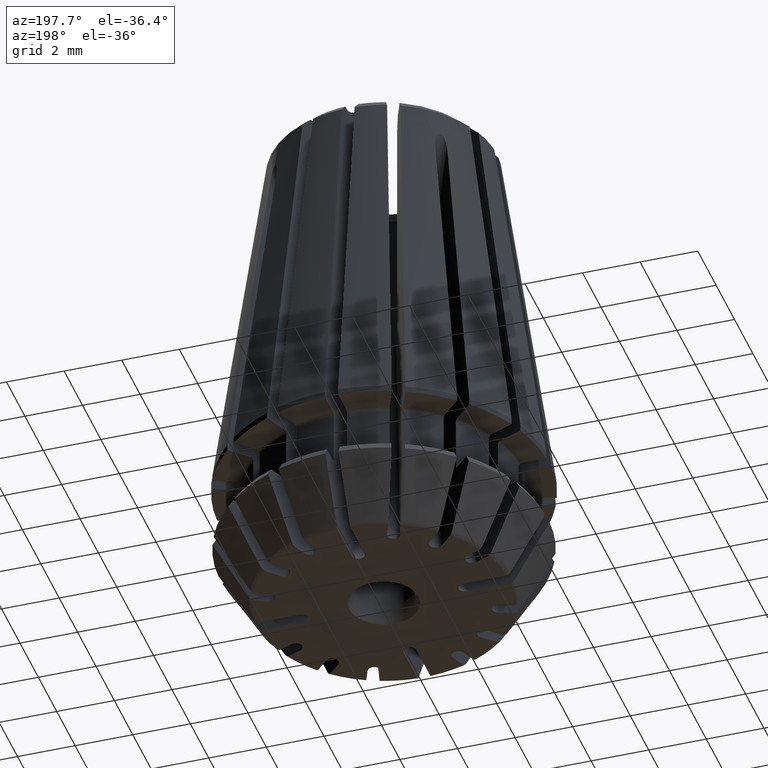
[diagram: clean part render]
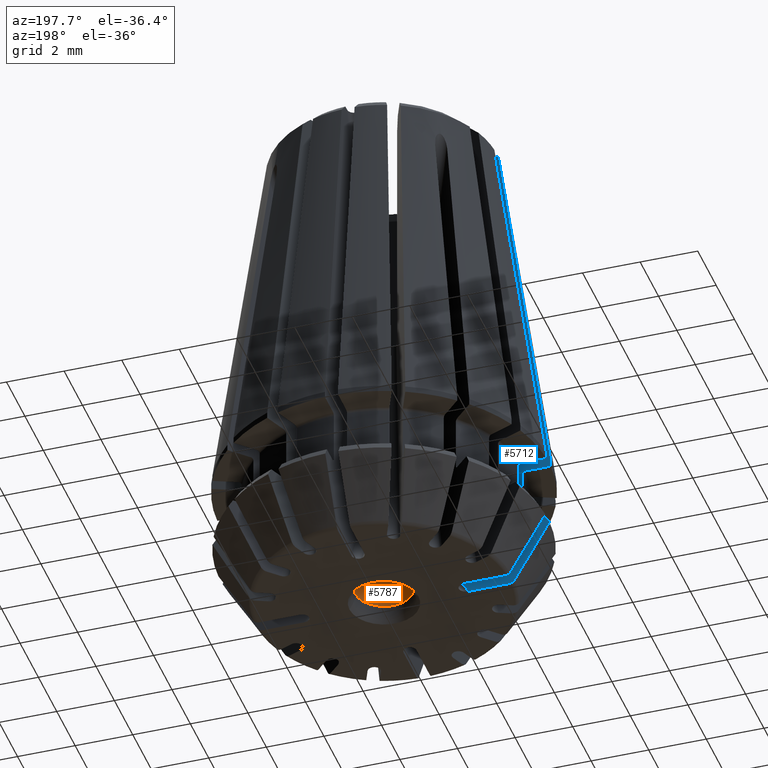
[diagram: same view with the hole feature highlighted: cylindrical wall and planar end face, labeled with their STEP entity ids]
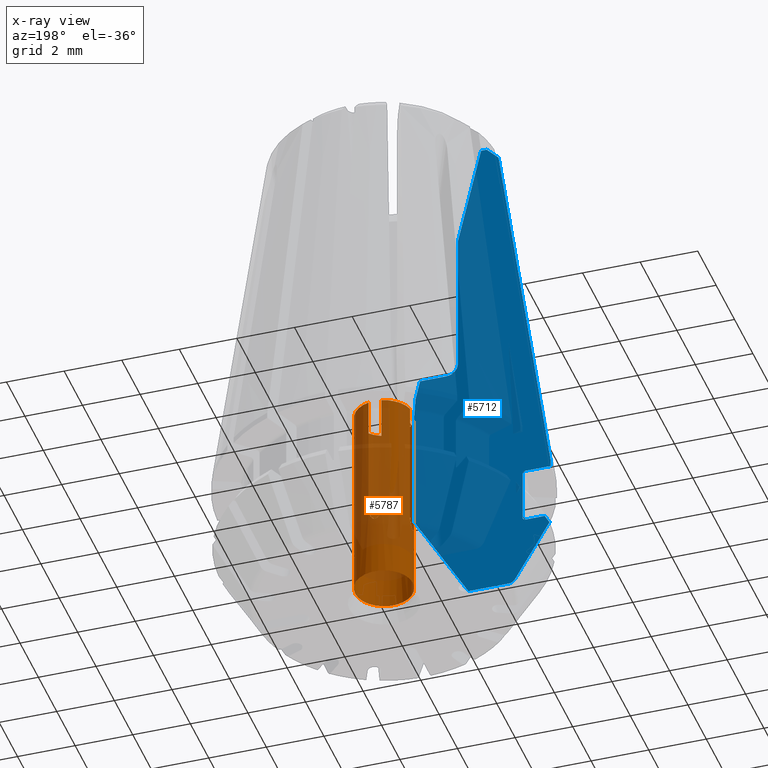
[diagram: x-ray of the same camera — body ghosted, the hole faces saturated]
A machine part, auxiliary view. The highlighted faces form one hole feature of diameter 2 mm: the cylindrical wall (entity #5787, orange) and its adjacent planar end face (entity #5712, blue) — they share a circular edge in the B-rep.
The next image is the same camera in x-ray (body ghosted, the hole faces saturated) — the bore reads through the body.
Wall:
#155=CYLINDRICAL_SURFACE('',#6453,1.);
#323=B_SPLINE_CURVE_WITH_KNOTS('',3,(#10191,#10192,#10193,#10194,#10195,
#10196,#10197,#10198,#10199),.UNSPECIFIED.,.F.,.F.,(4,1,1,1,1,1,4),(7.48040572663127E-18,
0.00028729196309179,0.000430937944637681,0.000574583926183573,0.000718229907729464,
0.000861875889275356,0.00114916785236714),.UNSPECIFIED.);
#361=B_SPLINE_CURVE_WITH_KNOTS('',3,(#10673,#10674,#10675,#10676,#10677,
#10678,#10679,#10680,#10681),.UNSPECIFIED.,.F.,.F.,(4,1,1,1,1,1,4),(7.48040572663127E-18,
0.000287291963091796,0.00043093794463769,0.000574583926183584,0.000718229907729479,
0.000861875889275373,0.00114916785236716),.UNSPECIFIED.);
#370=B_SPLINE_CURVE_WITH_KNOTS('',3,(#10783,#10784,#10785,#10786,#10787,
#10788,#10789,#10790,#10791),.UNSPECIFIED.,.F.,.F.,(4,1,1,1,1,1,4),(7.48040572663127E-18,
0.000287291963091796,0.00043093794463769,0.000574583926183584,0.000718229907729478,
0.000861875889275372,0.00114916785236716),.UNSPECIFIED.);
#371=B_SPLINE_CURVE_WITH_KNOTS('',3,(#10794,#10795,#10796,#10797,#10798,
#10799,#10800,#10801,#10802),.UNSPECIFIED.,.F.,.F.,(4,1,1,1,1,1,4),(3.03613875458156E-17,
0.000287291963091815,0.000430937944637707,0.000574583926183599,0.000718229907729491,
0.000861875889275384,0.00114916785236717),.UNSPECIFIED.);
#640=LINE('',#10153,#984);
#654=LINE('',#10219,#998);
#666=LINE('',#10254,#1010);
#720=LINE('',#10443,#1064);
#770=LINE('',#10708,#1114);
#774=LINE('',#10721,#1118);
#779=LINE('',#10751,#1123);
#784=LINE('',#10793,#1128);
#984=VECTOR('',#7640,1000.);
#998=VECTOR('',#7670,1000.);
#1010=VECTOR('',#7688,1000.);
#1064=VECTOR('',#7780,1000.);
#1114=VECTOR('',#8018,1000.);
#1118=VECTOR('',#8026,1000.);
#1123=VECTOR('',#8043,1000.);
#1128=VECTOR('',#8092,1000.);
#1398=CIRCLE('',#6259,1.);
#1421=CIRCLE('',#6298,1.);
#1457=CIRCLE('',#6447,1.);
#1458=CIRCLE('',#6449,1.);
#1459=CIRCLE('',#6451,1.);
#3174=ORIENTED_EDGE('',*,*,#3945,.F.);
#3175=ORIENTED_EDGE('',*,*,#4060,.T.);
#3176=ORIENTED_EDGE('',*,*,#4196,.T.);
#3177=ORIENTED_EDGE('',*,*,#3948,.F.);
#3178=ORIENTED_EDGE('',*,*,#3963,.T.);
#3179=ORIENTED_EDGE('',*,*,#4198,.T.);
#3180=ORIENTED_EDGE('',*,*,#3894,.T.);
#3181=ORIENTED_EDGE('',*,*,#4178,.F.);
#3182=ORIENTED_EDGE('',*,*,#4152,.T.);
#3183=ORIENTED_EDGE('',*,*,#3971,.T.);
#3184=ORIENTED_EDGE('',*,*,#4195,.T.);
#3185=ORIENTED_EDGE('',*,*,#4163,.F.);
#3186=ORIENTED_EDGE('',*,*,#4197,.T.);
#3187=ORIENTED_EDGE('',*,*,#3986,.T.);
#3188=ORIENTED_EDGE('',*,*,#4194,.T.);
#3189=ORIENTED_EDGE('',*,*,#4168,.F.);
#3190=ORIENTED_EDGE('',*,*,#4199,.T.);
#3894=EDGE_CURVE('',#4662,#4661,#1398,.T.);
#3945=EDGE_CURVE('',#4699,#4699,#1421,.T.);
#3948=EDGE_CURVE('',#4701,#4702,#640,.T.);
#3963=EDGE_CURVE('',#4701,#4708,#323,.T.);
#3971=EDGE_CURVE('',#4713,#4712,#654,.T.);
#3986=EDGE_CURVE('',#4721,#4720,#666,.T.);
#4060=EDGE_CURVE('',#4760,#4759,#720,.T.);
#4152=EDGE_CURVE('',#4798,#4713,#361,.T.);
#4163=EDGE_CURVE('',#4803,#4804,#770,.T.);
#4168=EDGE_CURVE('',#4806,#4807,#774,.T.);
#4178=EDGE_CURVE('',#4798,#4661,#779,.T.);
#4194=EDGE_CURVE('',#4720,#4807,#1457,.T.);
#4195=EDGE_CURVE('',#4712,#4804,#1458,.T.);
#4196=EDGE_CURVE('',#4759,#4702,#1459,.T.);
#4197=EDGE_CURVE('',#4803,#4721,#370,.T.);
#4198=EDGE_CURVE('',#4708,#4662,#784,.T.);
#4199=EDGE_CURVE('',#4806,#4760,#371,.T.);
#4661=VERTEX_POINT('',#9981);
#4662=VERTEX_POINT('',#9983);
#4699=VERTEX_POINT('',#10147);
#4701=VERTEX_POINT('',#10152);
#4702=VERTEX_POINT('',#10154);
#4708=VERTEX_POINT('',#10200);
#4712=VERTEX_POINT('',#10218);
#4713=VERTEX_POINT('',#10220);
#4720=VERTEX_POINT('',#10253);
#4721=VERTEX_POINT('',#10255);
#4759=VERTEX_POINT('',#10442);
#4760=VERTEX_POINT('',#10444);
#4798=VERTEX_POINT('',#10682);
#4803=VERTEX_POINT('',#10707);
#4804=VERTEX_POINT('',#10709);
#4806=VERTEX_POINT('',#10720);
#4807=VERTEX_POINT('',#10722);
#5124=EDGE_LOOP('',(#3174));
#5125=EDGE_LOOP('',(#3175,#3176,#3177,#3178,#3179,#3180,#3181,#3182,#3183,
#3184,#3185,#3186,#3187,#3188,#3189,#3190));
#5418=FACE_BOUND('',#5124,.T.);
#5419=FACE_BOUND('',#5125,.T.);
#5787=ADVANCED_FACE('',(#5418,#5419),#155,.F.);
#6259=AXIS2_PLACEMENT_3D('',#9982,#7540,#7541);
#6298=AXIS2_PLACEMENT_3D('',#10146,#7634,#7635);
#6447=AXIS2_PLACEMENT_3D('',#10777,#8078,#8079);
#6449=AXIS2_PLACEMENT_3D('',#10779,#8082,#8083);
#6451=AXIS2_PLACEMENT_3D('',#10781,#8086,#8087);
#6453=AXIS2_PLACEMENT_3D('',#10792,#8090,#8091);
#7540=DIRECTION('',(0.,0.,1.));
#7541=DIRECTION('',(1.,0.,0.));
#7634=DIRECTION('',(0.,0.,1.));
#7635=DIRECTION('',(1.,0.,0.));
#7640=DIRECTION('',(0.,0.,1.));
#7670=DIRECTION('',(0.,0.,1.));
#7688=DIRECTION('',(0.,0.,1.));
#7780=DIRECTION('',(0.,0.,1.));
#8018=DIRECTION('',(0.,0.,1.));
#8026=DIRECTION('',(0.,0.,1.));
#8043=DIRECTION('',(0.,0.,1.));
#8078=DIRECTION('',(0.,0.,1.));
#8079=DIRECTION('',(1.,0.,0.));
#8082=DIRECTION('',(0.,0.,1.));
#8083=DIRECTION('',(1.,0.,0.));
#8086=DIRECTION('',(0.,0.,1.));
#8087=DIRECTION('',(1.,0.,0.));
#8090=DIRECTION('',(0.,0.,-1.));
#8091=DIRECTION('',(1.,0.,0.));
#8092=DIRECTION('',(0.,0.,1.));
#9981=CARTESIAN_POINT('',(0.974358763495254,-0.225,3.1));
#9982=CARTESIAN_POINT('',(0.,0.,3.1));
#9983=CARTESIAN_POINT('',(0.225,-0.974358763495253,3.1));
#10146=CARTESIAN_POINT('',(0.,0.,-3.9));
#10147=CARTESIAN_POINT('',(1.,0.,-3.9));
#10152=CARTESIAN_POINT('',(-0.225,-0.974358763495252,-1.23763888317376));
#10153=CARTESIAN_POINT('',(-0.225,-0.974358763495253,60.));
#10154=CARTESIAN_POINT('',(-0.225,-0.974358763495254,3.1));
#10191=CARTESIAN_POINT('',(-0.225,-0.974358763495254,-1.23763888317377));
#10192=CARTESIAN_POINT('',(-0.225,-0.974358763495254,-1.33480576950573));
#10193=CARTESIAN_POINT('',(-0.201587726299522,-0.9798318673111,-1.47864644069128));
#10194=CARTESIAN_POINT('',(-0.131396926226279,-0.992724607326561,-1.65480442777411));
#10195=CARTESIAN_POINT('',(-0.00339382309168524,-1.00352923032475,-1.7694433398942));
#10196=CARTESIAN_POINT('',(0.129464355850656,-0.993138430190409,-1.65951419627548));
#10197=CARTESIAN_POINT('',(0.200693035193686,-0.979959953572658,-1.48184302279587));
#10198=CARTESIAN_POINT('',(0.225000000000002,-0.974358763495255,-1.3354375134434));
#10199=CARTESIAN_POINT('',(0.225000000000001,-0.974358763495256,-1.23763888317376));
#10200=CARTESIAN_POINT('',(0.225,-0.974358763495254,-1.23763888317376));
#10218=CARTESIAN_POINT('',(0.974358763495253,0.225,3.1));
#10219=CARTESIAN_POINT('',(0.974358763495253,0.225,60.));
#10220=CARTESIAN_POINT('',(0.974358763495254,0.225,-1.23763888317374));
#10253=CARTESIAN_POINT('',(-0.225,0.974358763495253,3.1));
#10254=CARTESIAN_POINT('',(-0.225,0.974358763495253,60.));
#10255=CARTESIAN_POINT('',(-0.225,0.974358763495254,-1.23763888317374));
#10442=CARTESIAN_POINT('',(-0.974358763495254,-0.225,3.1));
#10443=CARTESIAN_POINT('',(-0.974358763495253,-0.225,60.));
#10444=CARTESIAN_POINT('',(-0.97435876349525,-0.225,-1.23763888317373));
#10673=CARTESIAN_POINT('',(0.974358763495254,-0.225,-1.23763888317377));
#10674=CARTESIAN_POINT('',(0.974358763495254,-0.225,-1.33480576950573));
#10675=CARTESIAN_POINT('',(0.979831867311099,-0.20158772629952,-1.47864644069128));
#10676=CARTESIAN_POINT('',(0.992724607326562,-0.131396926226275,-1.65480442777412));
#10677=CARTESIAN_POINT('',(1.00352923032475,-0.0033938230916703,-1.7694433398942));
#10678=CARTESIAN_POINT('',(0.993138430190407,0.129464355850665,-1.65951419627546));
#10679=CARTESIAN_POINT('',(0.979959953572656,0.200693035193691,-1.48184302279585));
#10680=CARTESIAN_POINT('',(0.974358763495255,0.225000000000002,-1.3354375134434));
#10681=CARTESIAN_POINT('',(0.974358763495256,0.225000000000001,-1.23763888317376));
#10682=CARTESIAN_POINT('',(0.974358763495252,-0.225,-1.23763888317376));
#10707=CARTESIAN_POINT('',(0.225,0.974358763495252,-1.23763888317376));
#10708=CARTESIAN_POINT('',(0.225,0.974358763495253,60.));
#10709=CARTESIAN_POINT('',(0.225,0.974358763495254,3.1));
#10720=CARTESIAN_POINT('',(-0.974358763495254,0.225,-1.23763888317374));
#10721=CARTESIAN_POINT('',(-0.974358763495253,0.225,60.));
#10722=CARTESIAN_POINT('',(-0.974358763495253,0.225,3.1));
#10751=CARTESIAN_POINT('',(0.974358763495253,-0.225,60.));
#10777=CARTESIAN_POINT('',(0.,0.,3.1));
#10779=CARTESIAN_POINT('',(0.,0.,3.1));
#10781=CARTESIAN_POINT('',(0.,0.,3.1));
#10783=CARTESIAN_POINT('',(0.225,0.974358763495254,-1.23763888317377));
#10784=CARTESIAN_POINT('',(0.225,0.974358763495254,-1.33480576950573));
#10785=CARTESIAN_POINT('',(0.20158772629952,0.9798318673111,-1.47864644069128));
#10786=CARTESIAN_POINT('',(0.131396926226276,0.992724607326562,-1.65480442777412));
#10787=CARTESIAN_POINT('',(0.0033938230916708,1.00352923032475,-1.7694433398942));
#10788=CARTESIAN_POINT('',(-0.129464355850665,0.993138430190407,-1.65951419627546));
#10789=CARTESIAN_POINT('',(-0.200693035193691,0.979959953572657,-1.48184302279585));
#10790=CARTESIAN_POINT('',(-0.225000000000002,0.974358763495255,-1.3354375134434));
#10791=CARTESIAN_POINT('',(-0.225000000000001,0.974358763495256,-1.23763888317376));
#10792=CARTESIAN_POINT('',(0.,0.,60.));
#10793=CARTESIAN_POINT('',(0.225,-0.974358763495253,60.));
#10794=CARTESIAN_POINT('',(-0.974358763495254,0.225,-1.23763888317377));
#10795=CARTESIAN_POINT('',(-0.974358763495254,0.225,-1.33480576950573));
#10796=CARTESIAN_POINT('',(-0.9798318673111,0.201587726299514,-1.4786464406913));
#10797=CARTESIAN_POINT('',(-0.992724607326564,0.131396926226268,-1.65480442777414));
#10798=CARTESIAN_POINT('',(-1.00352923032475,0.00339382309165105,-1.7694433398942));
#10799=CARTESIAN_POINT('',(-0.993138430190406,-0.12946435585067,-1.65951419627545));
#10800=CARTESIAN_POINT('',(-0.979959953572656,-0.200693035193694,-1.48184302279584));
#10801=CARTESIAN_POINT('',(-0.974358763495256,-0.225000000000002,-1.3354375134434));
#10802=CARTESIAN_POINT('',(-0.974358763495256,-0.225000000000001,-1.23763888317376));
End face:
#311=B_SPLINE_CURVE_WITH_KNOTS('',3,(#10032,#10033,#10034,#10035),
 .UNSPECIFIED.,.F.,.F.,(4,4),(1.2266347333467E-18,0.000217050300101268),
 .UNSPECIFIED.);
#313=B_SPLINE_CURVE_WITH_KNOTS('',3,(#10059,#10060,#10061,#10062,#10063,
#10064,#10065,#10066,#10067,#10068,#10069,#10070,#10071,#10072,#10073,#10074,
#10075,#10076,#10077),.UNSPECIFIED.,.F.,.F.,(4,3,3,3,3,3,4),(0.000508123964984464,
0.000537637270612745,0.000571177696505112,0.000604738307685038,0.000625549372052781,
0.000659195284608331,0.000664416443486981),.UNSPECIFIED.);
#316=B_SPLINE_CURVE_WITH_KNOTS('',3,(#10088,#10089,#10090,#10091),
 .UNSPECIFIED.,.F.,.F.,(4,4),(0.,0.000626421242314205),.UNSPECIFIED.);
#343=B_SPLINE_CURVE_WITH_KNOTS('',3,(#10422,#10423,#10424,#10425),
 .UNSPECIFIED.,.F.,.F.,(4,4),(8.79155970620563E-19,0.000156301684380226),
 .UNSPECIFIED.);
#344=B_SPLINE_CURVE_WITH_KNOTS('',3,(#10428,#10429,#10430,#10431,#10432,
#10433,#10434,#10435,#10436,#10437),.UNSPECIFIED.,.F.,.F.,(4,3,3,4),(0.00561436130438672,
0.00726974917135835,0.014539498326312,0.0186168250345761),.UNSPECIFIED.);
#345=B_SPLINE_CURVE_WITH_KNOTS('',3,(#10438,#10439,#10440,#10441),
 .UNSPECIFIED.,.F.,.F.,(4,4),(8.94056015336375E-19,0.00141483656397302),
 .UNSPECIFIED.);
#449=LINE('',#8246,#793);
#529=LINE('',#9052,#873);
#531=LINE('',#9059,#875);
#623=LINE('',#10014,#967);
#625=LINE('',#10023,#969);
#626=LINE('',#10037,#970);
#629=LINE('',#10050,#973);
#714=LINE('',#10408,#1058);
#718=LINE('',#10420,#1062);
#719=LINE('',#10427,#1063);
#720=LINE('',#10443,#1064);
#721=LINE('',#10445,#1065);
#722=LINE('',#10447,#1066);
#793=VECTOR('',#6555,1000.);
#873=VECTOR('',#6999,1000.);
#875=VECTOR('',#7005,1000.);
#967=VECTOR('',#7551,1000.);
#969=VECTOR('',#7559,1000.);
#970=VECTOR('',#7566,1000.);
#973=VECTOR('',#7577,1000.);
#1058=VECTOR('',#7770,1000.);
#1062=VECTOR('',#7778,1000.);
#1063=VECTOR('',#7779,1000.);
#1064=VECTOR('',#7780,1000.);
#1065=VECTOR('',#7781,1000.);
#1066=VECTOR('',#7782,1000.);
#1409=CIRCLE('',#6279,11568.0267808078);
#1415=CIRCLE('',#6288,2799.35168609119);
#2607=ORIENTED_EDGE('',*,*,#3923,.T.);
#2608=ORIENTED_EDGE('',*,*,#3909,.F.);
#2609=ORIENTED_EDGE('',*,*,#3915,.F.);
#2610=ORIENTED_EDGE('',*,*,#3918,.F.);
#2611=ORIENTED_EDGE('',*,*,#4055,.T.);
#2612=ORIENTED_EDGE('',*,*,#4056,.F.);
#2613=ORIENTED_EDGE('',*,*,#4057,.F.);
#2614=ORIENTED_EDGE('',*,*,#3905,.T.);
#2615=ORIENTED_EDGE('',*,*,#4058,.F.);
#2616=ORIENTED_EDGE('',*,*,#3933,.F.);
#2617=ORIENTED_EDGE('',*,*,#3590,.F.);
#2618=ORIENTED_EDGE('',*,*,#4050,.T.);
#2619=ORIENTED_EDGE('',*,*,#3593,.F.);
#2620=ORIENTED_EDGE('',*,*,#3921,.T.);
#2621=ORIENTED_EDGE('',*,*,#3337,.T.);
#2622=ORIENTED_EDGE('',*,*,#4059,.T.);
#2623=ORIENTED_EDGE('',*,*,#4060,.F.);
#2624=ORIENTED_EDGE('',*,*,#4061,.T.);
#2625=ORIENTED_EDGE('',*,*,#4062,.F.);
#2626=ORIENTED_EDGE('',*,*,#3908,.F.);
#2627=ORIENTED_EDGE('',*,*,#3901,.F.);
#3337=EDGE_CURVE('',#4240,#4249,#449,.T.);
#3590=EDGE_CURVE('',#4443,#4436,#529,.T.);
#3593=EDGE_CURVE('',#4446,#4447,#531,.T.);
#3901=EDGE_CURVE('',#4666,#4663,#623,.T.);
#3905=EDGE_CURVE('',#4667,#4670,#625,.T.);
#3908=EDGE_CURVE('',#4663,#4671,#311,.T.);
#3909=EDGE_CURVE('',#4673,#4674,#626,.T.);
#3915=EDGE_CURVE('',#4678,#4673,#629,.T.);
#3918=EDGE_CURVE('',#4680,#4678,#313,.T.);
#3921=EDGE_CURVE('',#4446,#4240,#316,.T.);
#3923=EDGE_CURVE('',#4666,#4674,#1409,.T.);
#3933=EDGE_CURVE('',#4436,#4688,#1415,.T.);
#4050=EDGE_CURVE('',#4443,#4447,#714,.T.);
#4055=EDGE_CURVE('',#4680,#4757,#718,.T.);
#4056=EDGE_CURVE('',#4758,#4757,#343,.T.);
#4057=EDGE_CURVE('',#4667,#4758,#719,.T.);
#4058=EDGE_CURVE('',#4688,#4670,#344,.T.);
#4059=EDGE_CURVE('',#4249,#4759,#345,.T.);
#4060=EDGE_CURVE('',#4760,#4759,#720,.T.);
#4061=EDGE_CURVE('',#4760,#4761,#721,.T.);
#4062=EDGE_CURVE('',#4671,#4761,#722,.T.);
#4240=VERTEX_POINT('',#8228);
#4249=VERTEX_POINT('',#8245);
#4436=VERTEX_POINT('',#9038);
#4443=VERTEX_POINT('',#9051);
#4446=VERTEX_POINT('',#9058);
#4447=VERTEX_POINT('',#9060);
#4663=VERTEX_POINT('',#10008);
#4666=VERTEX_POINT('',#10013);
#4667=VERTEX_POINT('',#10017);
#4670=VERTEX_POINT('',#10022);
#4671=VERTEX_POINT('',#10026);
#4673=VERTEX_POINT('',#10038);
#4674=VERTEX_POINT('',#10039);
#4678=VERTEX_POINT('',#10049);
#4680=VERTEX_POINT('',#10058);
#4688=VERTEX_POINT('',#10112);
#4757=VERTEX_POINT('',#10421);
#4758=VERTEX_POINT('',#10426);
#4759=VERTEX_POINT('',#10442);
#4760=VERTEX_POINT('',#10444);
#4761=VERTEX_POINT('',#10446);
#5048=EDGE_LOOP('',(#2607,#2608,#2609,#2610,#2611,#2612,#2613,#2614,#2615,
#2616,#2617,#2618,#2619,#2620,#2621,#2622,#2623,#2624,#2625,#2626,#2627));
#5342=FACE_BOUND('',#5048,.T.);
#5477=PLANE('',#6329);
#5712=ADVANCED_FACE('',(#5342),#5477,.F.);
#6279=AXIS2_PLACEMENT_3D('',#10094,#7588,#7589);
#6288=AXIS2_PLACEMENT_3D('',#10115,#7610,#7611);
#6329=AXIS2_PLACEMENT_3D('',#10419,#7776,#7777);
#6555=DIRECTION('',(1.,-1.60812264967663E-16,0.));
#6999=DIRECTION('',(-1.,1.60812264967663E-16,0.));
#7005=DIRECTION('',(0.,0.,1.));
#7551=DIRECTION('',(0.643267970219981,0.,-0.765641115986509));
#7559=DIRECTION('',(0.,0.,1.));
#7566=DIRECTION('',(-0.50030341822675,2.88532212441706E-15,-0.865850154305368));
#7577=DIRECTION('',(-1.,1.60812264967663E-16,0.));
#7588=DIRECTION('',(-5.97398434995888E-12,1.,-3.45299082434506E-12));
#7589=DIRECTION('',(-0.865756640627248,-6.90011844470184E-12,-0.500465222777589));
#7610=DIRECTION('',(0.,-1.,0.));
#7611=DIRECTION('',(-0.706377932066106,0.,0.707834879820154));
#7770=DIRECTION('',(0.221621103588968,-3.56393916327752E-17,-0.97513285579146));
#7776=DIRECTION('',(-1.60812264967663E-16,-1.,0.));
#7777=DIRECTION('',(-1.,1.60812264967663E-16,0.));
#7778=DIRECTION('',(0.,0.,1.));
#7779=DIRECTION('',(1.,-1.60812264967663E-16,0.));
#7780=DIRECTION('',(0.,0.,1.));
#7781=DIRECTION('',(-0.5,8.04061324838318E-17,-0.866025403784439));
#7782=DIRECTION('',(1.,-1.60812264967663E-16,0.));
#8228=CARTESIAN_POINT('',(-2.08791163606121,-0.225,4.5));
#8245=CARTESIAN_POINT('',(-1.17871752341263,-0.225,4.5));
#8246=CARTESIAN_POINT('',(1.2,-0.225,4.5));
#9038=CARTESIAN_POINT('',(-3.49276036967898,-0.225,13.5));
#9051=CARTESIAN_POINT('',(-3.29891960807752,-0.225,13.5));
#9052=CARTESIAN_POINT('',(3.5,-0.225,13.5));
#9058=CARTESIAN_POINT('',(-2.48985441341457,-0.225,4.9));
#9059=CARTESIAN_POINT('',(-2.48985441341457,-0.225,60.));
#9060=CARTESIAN_POINT('',(-2.48985441341457,-0.225,9.94011314348307));
#10008=CARTESIAN_POINT('',(-4.44811088793255,-0.225,-4.41069690242165));
#10013=CARTESIAN_POINT('',(-4.46218796335061,-0.225,-4.39394185128918));
#10014=CARTESIAN_POINT('',(-4.45514942564158,-0.225,-4.40231937685541));
#10017=CARTESIAN_POINT('',(-5.71549928612604,-0.225,-2.03287907341032E-17));
#10022=CARTESIAN_POINT('',(-5.71549928612604,-0.225,0.213985362388708));
#10023=CARTESIAN_POINT('',(-5.71549928612604,-0.225,60.));
#10026=CARTESIAN_POINT('',(-4.25634390318225,-0.225,-4.50000000000012));
#10032=CARTESIAN_POINT('',(-4.44811088793254,-0.225,-4.41069690242164));
#10033=CARTESIAN_POINT('',(-4.40089943862136,-0.225,-4.46688947362778));
#10034=CARTESIAN_POINT('',(-4.32973518372185,-0.225,-4.50000000000028));
#10035=CARTESIAN_POINT('',(-4.25634390318219,-0.225,-4.50000000000025));
#10037=CARTESIAN_POINT('',(-5.59188430897334,-0.225,-2.14641016151377));
#10038=CARTESIAN_POINT('',(-5.50728594757761,-0.225,-2.));
#10039=CARTESIAN_POINT('',(-5.67648267036906,-0.225,-2.29282032302753));
#10049=CARTESIAN_POINT('',(-4.8447781166943,-0.225,-2.));
#10050=CARTESIAN_POINT('',(5.51188021535173,-0.225,-2.));
#10058=CARTESIAN_POINT('',(-4.74466806004382,-0.225,-1.9));
#10059=CARTESIAN_POINT('',(-4.74466806004382,-0.225,-1.9));
#10060=CARTESIAN_POINT('',(-4.74466806004382,-0.225,-1.9098400817147));
#10061=CARTESIAN_POINT('',(-4.74615408456239,-0.225,-1.91978576196325));
#10062=CARTESIAN_POINT('',(-4.74902996296054,-0.225,-1.92919620996486));
#10063=CARTESIAN_POINT('',(-4.75229762808852,-0.225,-1.93988866232773));
#10064=CARTESIAN_POINT('',(-4.75745589773762,-0.225,-1.95016421345068));
#10065=CARTESIAN_POINT('',(-4.76407667525137,-0.225,-1.95917373497151));
#10066=CARTESIAN_POINT('',(-4.77070145703114,-0.225,-1.96818870547786));
#10067=CARTESIAN_POINT('',(-4.77897282325108,-0.225,-1.97618450074837));
#10068=CARTESIAN_POINT('',(-4.78820586162242,-0.225,-1.98250181262079));
#10069=CARTESIAN_POINT('',(-4.79398152879823,-0.225,-1.98645356602561));
#10070=CARTESIAN_POINT('',(-4.80020754462713,-0.225,-1.98981459440849));
#10071=CARTESIAN_POINT('',(-4.80668017356435,-0.225,-1.99247537642499));
#10072=CARTESIAN_POINT('',(-4.8170532107849,-0.225,-1.99673954654207));
#10073=CARTESIAN_POINT('',(-4.82830565387836,-0.225,-1.99927112126445));
#10074=CARTESIAN_POINT('',(-4.83950542436257,-0.225,-1.99986119674028));
#10075=CARTESIAN_POINT('',(-4.84126116221665,-0.225,-1.99995370022963));
#10076=CARTESIAN_POINT('',(-4.8430199436915,-0.225,-2.));
#10077=CARTESIAN_POINT('',(-4.8447781166943,-0.225,-2.));
#10088=CARTESIAN_POINT('',(-2.48985441341457,-0.225,4.9));
#10089=CARTESIAN_POINT('',(-2.48985441341457,-0.225,4.68818216625365));
#10090=CARTESIAN_POINT('',(-2.29970021306952,-0.225,4.49999999999995));
#10091=CARTESIAN_POINT('',(-2.08791163606117,-0.225,4.5));
#10094=CARTESIAN_POINT('',(10010.6338164748,-0.224999920179245,5785.00115810279));
#10112=CARTESIAN_POINT('',(-3.90389434385852,-0.225,13.0896271216148));
#10115=CARTESIAN_POINT('',(1973.90749477718,-0.225,-1967.9787642987));
#10408=CARTESIAN_POINT('',(-2.70925930596763,-0.225,10.9054946707165));
#10419=CARTESIAN_POINT('',(-2.54903810567666,-0.225,3.25));
#10420=CARTESIAN_POINT('',(-4.74466806004382,-0.225,60.));
#10421=CARTESIAN_POINT('',(-4.74466806004382,-0.225,-0.100000000000093));
#10422=CARTESIAN_POINT('',(-4.8447781166943,-0.225,-6.01853107621011E-31));
#10423=CARTESIAN_POINT('',(-4.79192772343336,-0.225,-1.37521226856529E-15));
#10424=CARTESIAN_POINT('',(-4.74466806004333,-0.225,-4.71479777664181E-02));
#10425=CARTESIAN_POINT('',(-4.74466806004337,-0.225,-0.100000000000081));
#10426=CARTESIAN_POINT('',(-4.8447781166943,-0.224999999999999,-3.00926553810506E-31));
#10427=CARTESIAN_POINT('',(4.85,-0.225,-2.03287907341032E-17));
#10428=CARTESIAN_POINT('',(-3.90389434385852,-0.225,13.0896271216148));
#10429=CARTESIAN_POINT('',(-3.98081446573698,-0.225,12.5432187830566));
#10430=CARTESIAN_POINT('',(-4.05772723022901,-0.225,11.9968094087339));
#10431=CARTESIAN_POINT('',(-4.13463380389944,-0.225,11.4503991631108));
#10432=CARTESIAN_POINT('',(-4.47237428738564,-0.225,9.05080116087212));
#10433=CARTESIAN_POINT('',(-4.80999959908477,-0.225,6.6511869478501));
#10434=CARTESIAN_POINT('',(-5.14756654699005,-0.225,4.25156452708987));
#10435=CARTESIAN_POINT('',(-5.33689505104087,-0.225,2.90570728002074));
#10436=CARTESIAN_POINT('',(-5.52620421620157,-0.225,1.55984731238094));
#10437=CARTESIAN_POINT('',(-5.71549928612604,-0.224999999999999,0.213985362388707));
#10438=CARTESIAN_POINT('',(-1.17871752341263,-0.225,4.5));
#10439=CARTESIAN_POINT('',(-1.0430754975083,-0.225,4.04318962044393));
#10440=CARTESIAN_POINT('',(-0.974358763495254,-0.225,3.57661011970356));
#10441=CARTESIAN_POINT('',(-0.974358763495254,-0.225,3.1));
#10442=CARTESIAN_POINT('',(-0.974358763495254,-0.225,3.1));
#10443=CARTESIAN_POINT('',(-0.974358763495253,-0.225,60.));
#10444=CARTESIAN_POINT('',(-0.97435876349525,-0.225,-1.23763888317373));
#10445=CARTESIAN_POINT('',(-2.79293192720482,-0.225,-4.3875));
#10446=CARTESIAN_POINT('',(-2.85788383248865,-0.225,-4.5));
#10447=CARTESIAN_POINT('',(-3.61827596177244E-17,-0.225,-4.5));